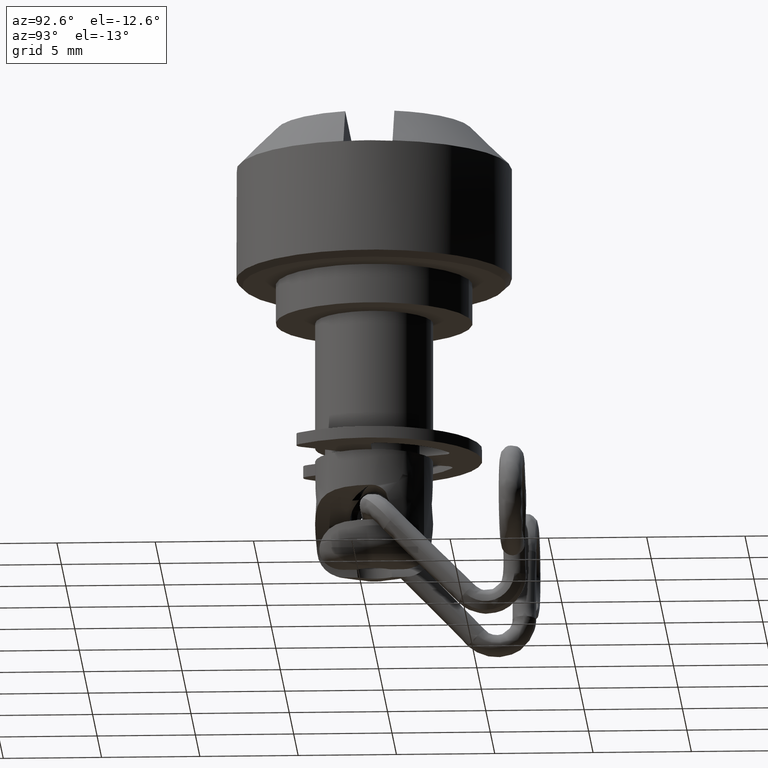
[diagram: clean part render]
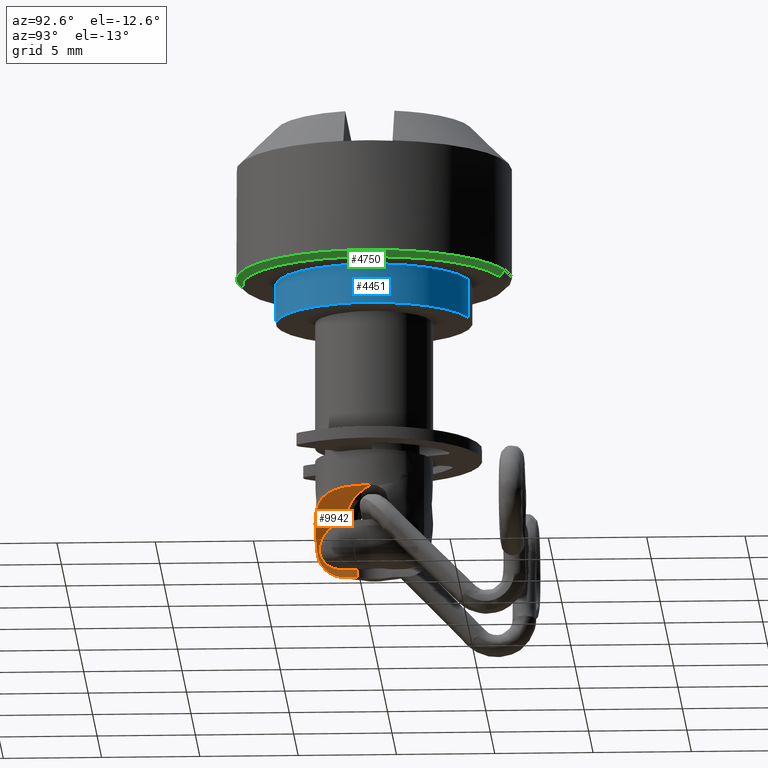
[diagram: same view with three faces highlighted in distinct colors, each labeled with its STEP entity id]
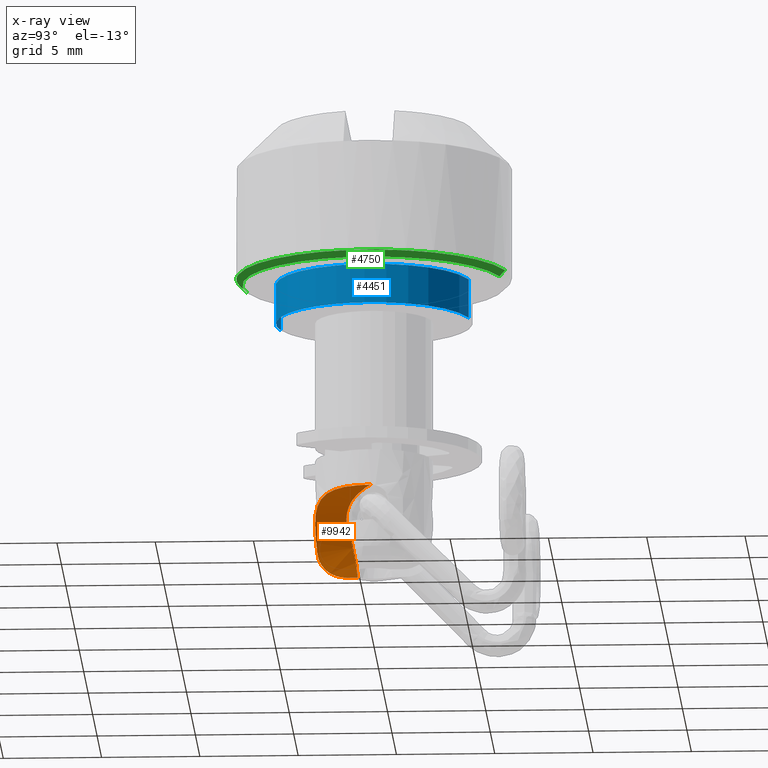
[diagram: x-ray of the same camera — body ghosted, the three highlighted faces saturated]
A machine part, auxiliary view with three faces highlighted in distinct colors.
The next image is the same camera in x-ray (body ghosted, the three faces saturated) — at least one of them is partly hidden behind the body in this view.
Their STEP definitions:

[orange] entity #9942 — the highlighted face is a freeform B-spline surface patch.
#4951=CARTESIAN_POINT('',(0.205963115357180,-1.232914520792794,-0.693671664067558));
#4952=VERTEX_POINT('',#4951);
#4965=CARTESIAN_POINT('',(-0.549029693676818,-1.122970416739746,-2.797568999999945));
#4966=VERTEX_POINT('',#4965);
#4967=CARTESIAN_POINT('',(-0.549029693676818,-1.122970416739746,-2.797568999999945));
#4968=CARTESIAN_POINT('',(-0.539944716294068,-1.127412151977025,-2.607059855098308));
#4969=CARTESIAN_POINT('',(-0.513922313118079,-1.140295388909913,-2.420711773217555));
#4970=CARTESIAN_POINT('',(-0.453519154628409,-1.165027990504133,-2.146028732553391));
#4971=CARTESIAN_POINT('',(-0.429820929953312,-1.174122430927605,-2.055270696278742));
#4972=CARTESIAN_POINT('',(-0.375838630284057,-1.192499487489124,-1.875130118935713));
#4973=CARTESIAN_POINT('',(-0.345463483476771,-1.201803046146432,-1.785511258873199));
#4974=CARTESIAN_POINT('',(-0.245730686628916,-1.227529441797733,-1.520183170621608));
#4975=CARTESIAN_POINT('',(-0.168237642866749,-1.241674139128102,-1.348768709188078));
#4976=CARTESIAN_POINT('',(-0.038083424173056,-1.250175162611496,-1.098302886985109));
#4977=CARTESIAN_POINT('',(0.007640550973446,-1.250896780519051,-1.015933972659380));
#4978=CARTESIAN_POINT('',(0.103523388370954,-1.246629227698777,-0.853268810086542));
#4979=CARTESIAN_POINT('',(0.153789024976393,-1.241630313570923,-0.772814035322686));
#4980=CARTESIAN_POINT('',(0.205963115357180,-1.232914520792794,-0.693671664067558));
#4981=B_SPLINE_CURVE_WITH_KNOTS('',3,(#4967,#4968,#4969,#4970,#4971,#4972,#4973,#4974,#4975,#4976,#4977,#4978,#4979,#4980),.UNSPECIFIED.,.F.,.U.,(4,2,2,2,2,2,4),(0.0,0.250000000000000,0.375000000000000,0.500000000000000,0.750000000000000,0.875000000000000,1.0),.UNSPECIFIED.);
#4982=EDGE_CURVE('',#4966,#4952,#4981,.T.);
#5463=CARTESIAN_POINT('',(0.384460657985585,-2.975263013997480,-1.547569000000000));
#5464=VERTEX_POINT('',#5463);
#5478=CARTESIAN_POINT('',(2.820636082294540,1.021300311204178,1.152422871597004));
#5479=VERTEX_POINT('',#5478);
#5480=CARTESIAN_POINT('',(2.820636082294540,1.021300311204178,1.152422871597004));
#5481=CARTESIAN_POINT('',(2.867171454631814,0.892784943060084,1.152411664944415));
#5482=CARTESIAN_POINT('',(2.904436219625526,0.762568608670980,1.151969508223129));
#5483=CARTESIAN_POINT('',(2.961153208947292,0.498872104625671,1.149885077966201));
#5484=CARTESIAN_POINT('',(2.980603171999665,0.365391501825253,1.148244242173445));
#5485=CARTESIAN_POINT('',(2.996214362942951,0.162694921416098,1.144053717700126));
#5486=CARTESIAN_POINT('',(2.999150652365594,0.094589669909876,1.142358684197990));
#5487=CARTESIAN_POINT('',(3.000353939690970,-0.041927600758881,1.138175390140097));
#5488=CARTESIAN_POINT('',(2.998625057596716,-0.109801904801938,1.135704017576309));
#5489=CARTESIAN_POINT('',(2.986645579679319,-0.312278810980644,1.126829523305095));
#5490=CARTESIAN_POINT('',(2.969629143994986,-0.445741133677874,1.118987908328453));
#5491=CARTESIAN_POINT('',(2.930819476978147,-0.643571411924924,1.102697735866866));
#5492=CARTESIAN_POINT('',(2.915661815735251,-0.709119536712041,1.096507950623886));
#5493=CARTESIAN_POINT('',(2.880865841295722,-0.839393978462464,1.082261716255054));
#5494=CARTESIAN_POINT('',(2.861159339547317,-0.904316496867817,1.074177044819475));
#5495=CARTESIAN_POINT('',(2.795645031299678,-1.096439356484251,1.046702736569682));
#5496=CARTESIAN_POINT('',(2.744070783024732,-1.219415084117195,1.024355472666634));
#5497=CARTESIAN_POINT('',(2.626594462647109,-1.455324705332227,0.969273962733540));
#5498=CARTESIAN_POINT('',(2.560684280920353,-1.568256406505874,0.936547620641303));
#5499=CARTESIAN_POINT('',(2.451769497483069,-1.729953427898197,0.877578184618789));
#5500=CARTESIAN_POINT('',(2.413594477170959,-1.782803774531881,0.856155634644694));
#5501=CARTESIAN_POINT('',(2.335116353202360,-1.884433780245936,0.810269749066437));
#5502=CARTESIAN_POINT('',(2.294830998791217,-1.933234833183781,0.785825991639727));
#5503=CARTESIAN_POINT('',(2.171272975007716,-2.073872018378895,0.707767892632356));
#5504=CARTESIAN_POINT('',(2.085305435931722,-2.159953281587504,0.649433063813324));
#5505=CARTESIAN_POINT('',(1.952498773572708,-2.278404082625602,0.551505772831926));
#5506=CARTESIAN_POINT('',(1.907585073947496,-2.316106057605309,0.517124450961756));
#5507=CARTESIAN_POINT('',(1.816708718150029,-2.388057525272861,0.444698387988086));
#5508=CARTESIAN_POINT('',(1.771092634412459,-2.422026135501389,0.406922891004774));
#5509=CARTESIAN_POINT('',(1.634918849928858,-2.517793813023590,0.289598514236484));
#5510=CARTESIAN_POINT('',(1.544677136637975,-2.573761560035087,0.205770763553067));
#5511=CARTESIAN_POINT('',(1.411357610679551,-2.647756607959278,0.071513951252716));
#5512=CARTESIAN_POINT('',(1.367256799689441,-2.670757199333073,0.025340827665486));
#5513=CARTESIAN_POINT('',(1.279930012480406,-2.713692062485188,-0.069884870702321));
#5514=CARTESIAN_POINT('',(1.236623353192088,-2.733654621764687,-0.119044041373188));
#5515=CARTESIAN_POINT('',(1.025326248476818,-2.825360973935341,-0.369039157569406));
#5516=CARTESIAN_POINT('',(0.870967672779984,-2.874244929633177,-0.584367378180337));
#5517=CARTESIAN_POINT('',(0.700171278148239,-2.917363852755223,-0.872490936875718));
#5518=CARTESIAN_POINT('',(0.667125871424556,-2.925066964007890,-0.931072772410460));
#5519=CARTESIAN_POINT('',(0.603388576668188,-2.938876517042195,-1.050182005424933));
#5520=CARTESIAN_POINT('',(0.572647152590511,-2.944991185645538,-1.110818654817948));
#5521=CARTESIAN_POINT('',(0.484686094694533,-2.961189120051016,-1.294599004678412));
#5522=CARTESIAN_POINT('',(0.431623281511967,-2.969169284470344,-1.419737738973266));
#5523=CARTESIAN_POINT('',(0.384460657985585,-2.975263013997480,-1.547569000000000));
#5524=B_SPLINE_CURVE_WITH_KNOTS('',3,(#5480,#5481,#5482,#5483,#5484,#5485,#5486,#5487,#5488,#5489,#5490,#5491,#5492,#5493,#5494,#5495,#5496,#5497,#5498,#5499,#5500,#5501,#5502,#5503,#5504,#5505,#5506,#5507,#5508,#5509,#5510,#5511,#5512,#5513,#5514,#5515,#5516,#5517,#5518,#5519,#5520,#5521,#5522,#5523),.UNSPECIFIED.,.F.,.U.,(4,2,2,2,2,2,2,2,2,2,2,2,2,2,2,2,2,2,2,2,2,4),(0.0,0.062500000000000,0.125000000000000,0.156250000000000,0.187500000000000,0.249999999999999,0.281249999999999,0.312499999999999,0.374999999999999,0.437499999999999,0.468749999999999,0.499999999999999,0.562499999999999,0.593749999999999,0.624999999999999,0.687499999999999,0.718749999999999,0.749999999999999,0.875000000000000,0.906250000000000,0.937500000000000,1.0),.UNSPECIFIED.);
#5525=EDGE_CURVE('',#5479,#5464,#5524,.T.);
#5828=CARTESIAN_POINT('',(0.205963115357180,-1.232914520792794,-0.693671664067558));
#5829=CARTESIAN_POINT('',(0.240257843658670,-1.245525729305493,-0.652129766293883));
#5830=CARTESIAN_POINT('',(0.309473795123974,-1.270978220858080,-0.568287089098994));
#5831=CARTESIAN_POINT('',(0.417605035121080,-1.284341641993242,-0.437671150039825));
#5832=CARTESIAN_POINT('',(0.530221625094299,-1.279532529407018,-0.304079947590560));
#5833=CARTESIAN_POINT('',(0.648262176235693,-1.254505408762430,-0.168101356018993));
#5834=CARTESIAN_POINT('',(0.772318663189203,-1.209626385641915,-0.030950985979541));
#5835=CARTESIAN_POINT('',(0.903001063769071,-1.144471330612155,0.106202832040895));
#5836=CARTESIAN_POINT('',(1.100481058849833,-1.022664792120136,0.300573881514726));
#5837=CARTESIAN_POINT('',(1.369903702545043,-0.803781906153216,0.535687031169386));
#5838=CARTESIAN_POINT('',(1.662626520485835,-0.493306108418290,0.744736145723308));
#5839=CARTESIAN_POINT('',(1.957759511550587,-0.121514362140409,0.917247279663458));
#5840=CARTESIAN_POINT('',(2.191257112335223,0.175955132924863,1.017008075086221));
#5841=CARTESIAN_POINT('',(2.388572376224178,0.425135789772737,1.077181772343820));
#5842=CARTESIAN_POINT('',(2.500341841118261,0.563242152980361,1.104773628544030));
#5843=CARTESIAN_POINT('',(2.598922473291687,0.685160403330863,1.124173982036536));
#5844=CARTESIAN_POINT('',(2.680224517866991,0.790181821811500,1.136917906089791));
#5845=CARTESIAN_POINT('',(2.743859805464496,0.875241964757955,1.144761716169484));
#5846=CARTESIAN_POINT('',(2.786193087535433,0.941124274144916,1.149142379023022));
#5847=CARTESIAN_POINT('',(2.815726133838135,0.986141797536301,1.151589093855657));
#5848=CARTESIAN_POINT('',(2.819390961713099,1.012384415371583,1.152211432752927));
#5849=CARTESIAN_POINT('',(2.820636082294540,1.021300311204178,1.152422871597004));
#5850=B_SPLINE_CURVE_WITH_KNOTS('',3,(#5828,#5829,#5830,#5831,#5832,#5833,#5834,#5835,#5836,#5837,#5838,#5839,#5840,#5841,#5842,#5843,#5844,#5845,#5846,#5847,#5848,#5849),.UNSPECIFIED.,.F.,.U.,(4,1,1,1,1,1,1,1,1,1,1,1,1,1,1,1,1,1,1,4),(0.000001393896253,0.039132818300070,0.078979055168553,0.120025420089439,0.162717585383855,0.207452049945907,0.254573775938284,0.304378134259630,0.421554539942391,0.549536769660944,0.639152081857267,0.778878114641514,0.825873964756257,0.868197930129148,0.906186987899415,0.937699474003213,0.962752355465390,0.981380532602847,0.993674059775080,1.0),.UNSPECIFIED.);
#5851=EDGE_CURVE('',#4952,#5479,#5850,.T.);
#9888=CARTESIAN_POINT('',(3.904202428307071,-1.851109253478826,1.154043304904847));
#9889=CARTESIAN_POINT('',(2.828025670628521,1.105659797657334,1.154043304904847));
#9890=CARTESIAN_POINT('',(0.115565390988988,-3.230061431456722,0.989158006792169));
#9891=CARTESIAN_POINT('',(-0.960611366689562,-0.273292380320562,0.989158006792169));
#9892=CARTESIAN_POINT('',(0.204362443107422,-3.197741922564572,-3.044889266617264));
#9893=CARTESIAN_POINT('',(-0.871814314571128,-0.240972871428412,-3.044889266617264));
#9901=(BOUNDED_SURFACE()B_SPLINE_SURFACE(1,2,((#9888,#9890,#9892),(#9889,#9891,#9893)),.UNSPECIFIED.,.F.,.F.,.U.)B_SPLINE_SURFACE_WITH_KNOTS((2,2),(3,3),(0.0,3.146528187625870),(0.0,6.719567059010545),.UNSPECIFIED.)GEOMETRIC_REPRESENTATION_ITEM()RATIONAL_B_SPLINE_SURFACE(((1.0,0.713250449154182,1.0),(1.0,0.713250449154182,1.0)))REPRESENTATION_ITEM('')SURFACE());
#9902=ORIENTED_EDGE('',*,*,#4982,.T.);
#9903=ORIENTED_EDGE('',*,*,#5851,.T.);
#9904=ORIENTED_EDGE('',*,*,#5525,.T.);
#9905=CARTESIAN_POINT('',(-0.332405349317000,-1.718140450428505,-2.797569000000000));
#9906=VERTEX_POINT('',#9905);
#9907=CARTESIAN_POINT('',(0.384460657985585,-2.975263013997480,-1.547569000000000));
#9908=CARTESIAN_POINT('',(0.353725753220118,-2.979234549170721,-1.630869672179825));
#9909=CARTESIAN_POINT('',(0.323404935149963,-2.974356987596519,-1.713152922088792));
#9910=CARTESIAN_POINT('',(0.278099530680259,-2.954196656421312,-1.834942802435956));
#9911=CARTESIAN_POINT('',(0.263023958552787,-2.945321051997315,-1.875263822567781));
#9912=CARTESIAN_POINT('',(0.232807172307743,-2.923153194939138,-1.955296703780111));
#9913=CARTESIAN_POINT('',(0.217641540884975,-2.909808081019763,-1.995064698932035));
#9914=CARTESIAN_POINT('',(0.172842896799725,-2.864020539901286,-2.110704623519117));
#9915=CARTESIAN_POINT('',(0.143571837376660,-2.825667465240883,-2.183855838643853));
#9916=CARTESIAN_POINT('',(0.099511222261994,-2.756662011372606,-2.287386242709175));
#9917=CARTESIAN_POINT('',(0.084722905090603,-2.731596910260179,-2.321017095539517));
#9918=CARTESIAN_POINT('',(0.055269015164988,-2.678204823394388,-2.385249918964169));
#9919=CARTESIAN_POINT('',(0.040662323962867,-2.650007471363921,-2.415736580907402));
#9920=CARTESIAN_POINT('',(-0.003093535514354,-2.561133589457696,-2.502399086767228));
#9921=CARTESIAN_POINT('',(-0.032181011021779,-2.496207441965324,-2.553812445748871));
#9922=CARTESIAN_POINT('',(-0.076767001321745,-2.390536364456005,-2.621075239942960));
#9923=CARTESIAN_POINT('',(-0.091684378628970,-2.354162341454572,-2.641671519141432));
#9924=CARTESIAN_POINT('',(-0.121408047386266,-2.280147457790476,-2.678822375509757));
#9925=CARTESIAN_POINT('',(-0.151134822083010,-2.204594544266973,-2.712106210244977));
#9926=CARTESIAN_POINT('',(-0.181115306444651,-2.126147298083776,-2.737869484548138));
#9927=CARTESIAN_POINT('',(-0.211318056590485,-2.046306397336791,-2.759913212420300));
#9928=CARTESIAN_POINT('',(-0.226597851232822,-2.005506966726295,-2.769099118149168));
#9929=CARTESIAN_POINT('',(-0.272184653172494,-1.882922264189031,-2.790780293142500));
#9930=CARTESIAN_POINT('',(-0.302347399385148,-1.800723925370904,-2.797569001314795));
#9931=CARTESIAN_POINT('',(-0.332405349317000,-1.718140450428505,-2.797569000000000));
#9932=B_SPLINE_CURVE_WITH_KNOTS('',3,(#9907,#9908,#9909,#9910,#9911,#9912,#9913,#9914,#9915,#9916,#9917,#9918,#9919,#9920,#9921,#9922,#9923,#9924,#9925,#9926,#9927,#9928,#9929,#9930,#9931),.UNSPECIFIED.,.F.,.U.,(4,2,2,2,2,2,2,2,2,1,2,2,4),(0.0,0.125000000000000,0.187500000000000,0.250000000000000,0.374999999999999,0.437500000000000,0.500000000000000,0.625000000000000,0.687500000000000,0.750000000000000,0.812500000000000,0.875000000000000,1.0),.UNSPECIFIED.);
#9933=EDGE_CURVE('',#5464,#9906,#9932,.T.);
#9934=ORIENTED_EDGE('',*,*,#9933,.T.);
#9935=CARTESIAN_POINT('',(-0.332405349317000,-1.718140450428505,-2.797569000000000));
#9936=CARTESIAN_POINT('',(-0.549029693676818,-1.122970416739746,-2.797568999999945));
#9937=QUASI_UNIFORM_CURVE('',1,(#9935,#9936),.UNSPECIFIED.,.F.,.U.);
#9938=EDGE_CURVE('',#9906,#4966,#9937,.T.);
#9939=ORIENTED_EDGE('',*,*,#9938,.T.);
#9940=EDGE_LOOP('',(#9902,#9903,#9904,#9934,#9939));
#9941=FACE_OUTER_BOUND('',#9940,.T.);
#9942=ADVANCED_FACE('',(#9941),#9901,.F.);

[blue] entity #4451 — the highlighted face is a freeform B-spline surface patch.
#4345=CARTESIAN_POINT('',(-0.663847294770363,4.956290107966582,12.252431000000028));
#4346=CARTESIAN_POINT('',(-0.626905372176714,4.960681215447754,12.252431000000028));
#4347=CARTESIAN_POINT('',(-0.448073643189888,4.981938077243028,12.252431000000019));
#4348=CARTESIAN_POINT('',(-0.305242697674285,4.990673992109334,12.252431000000019));
#4349=CARTESIAN_POINT('',(4.685431294435048,5.295916689783620,12.252431000000021));
#4350=CARTESIAN_POINT('',(4.990673992109334,0.305242697674285,12.252431000000019));
#4351=CARTESIAN_POINT('',(5.295916689783620,-4.685431294435048,12.252431000000021));
#4352=CARTESIAN_POINT('',(0.269350681095140,-4.992869241885801,12.252431000000028));
#4353=CARTESIAN_POINT('',(0.233671870313979,-4.995051451437027,12.252431000000024));
#4354=CARTESIAN_POINT('',(-0.663847294770363,4.956290107966582,10.151181000000019));
#4355=CARTESIAN_POINT('',(-0.626905372176714,4.960681215447754,10.151181000000021));
#4356=CARTESIAN_POINT('',(-0.448073643189888,4.981938077243028,10.151181000000019));
#4357=CARTESIAN_POINT('',(-0.305242697674285,4.990673992109334,10.151181000000021));
#4358=CARTESIAN_POINT('',(4.685431294435048,5.295916689783620,10.151181000000019));
#4359=CARTESIAN_POINT('',(4.990673992109334,0.305242697674285,10.151181000000021));
#4360=CARTESIAN_POINT('',(5.295916689783620,-4.685431294435048,10.151181000000019));
#4361=CARTESIAN_POINT('',(0.269350681095140,-4.992869241885801,10.151181000000026));
#4362=CARTESIAN_POINT('',(0.233671870313979,-4.995051451437027,10.151181000000021));
#4370=(BOUNDED_SURFACE()B_SPLINE_SURFACE(2,1,((#4345,#4354),(#4346,#4355),(#4347,#4356),(#4348,#4357),(#4349,#4358),(#4350,#4359),(#4351,#4360),(#4352,#4361),(#4353,#4362)),.UNSPECIFIED.,.F.,.F.,.U.)B_SPLINE_SURFACE_WITH_KNOTS((3,1,2,2,1,3),(2,2),(0.0,0.084491509864777,0.415862359763254,8.700133607225153,16.984404854687050,17.068913986153241),(0.0,2.101250000000007),.UNSPECIFIED.)GEOMETRIC_REPRESENTATION_ITEM()RATIONAL_B_SPLINE_SURFACE(((0.972009304993944,0.972009304993944),(0.974757552894535,0.974757552894535),(0.988284271247462,0.988284271247462),(1.0,1.0),(0.707106781186548,0.707106781186548),(1.0,1.0),(0.707106781186548,0.707106781186548),(1.002987848996596,1.002987848996596),(1.005975697993193,1.005975697993193)))REPRESENTATION_ITEM('')SURFACE());
#4371=CARTESIAN_POINT('',(-0.590164095105630,4.965048473156868,10.202431000000111));
#4372=VERTEX_POINT('',#4371);
#4373=CARTESIAN_POINT('',(5.0,0.0,10.202431000000020));
#4374=VERTEX_POINT('',#4373);
#4375=CARTESIAN_POINT('',(-0.590164095105630,4.965048473156868,10.202431000000105));
#4376=CARTESIAN_POINT('',(-0.296117021756428,5.0,10.202431000000018));
#4377=CARTESIAN_POINT('',(0.0,5.0,10.202431000000020));
#4378=CARTESIAN_POINT('',(5.000000000000001,5.000000000000001,10.202431000000020));
#4379=CARTESIAN_POINT('',(5.0,0.0,10.202431000000020));
#4387=(BOUNDED_CURVE()B_SPLINE_CURVE(2,(#4375,#4376,#4377,#4378,#4379),.UNSPECIFIED.,.F.,.U.)B_SPLINE_CURVE_WITH_KNOTS((3,2,3),(0.229562714446910,0.250000000000000,0.500000000000000),.UNSPECIFIED.)CURVE()GEOMETRIC_REPRESENTATION_ITEM()RATIONAL_B_SPLINE_CURVE((0.956027226423570,0.976056230602183,1.0,0.707106781186548,1.0))REPRESENTATION_ITEM(''));
#4388=EDGE_CURVE('',#4372,#4374,#4387,.T.);
#4389=ORIENTED_EDGE('',*,*,#4388,.F.);
#4390=CARTESIAN_POINT('',(-0.590164182401751,4.965048462780651,12.202431000000020));
#4391=VERTEX_POINT('',#4390);
#4392=CARTESIAN_POINT('',(-0.590164182401751,4.965048462780651,12.202431000000020));
#4393=CARTESIAN_POINT('',(-0.590164095105630,4.965048473156868,10.202431000000111));
#4394=QUASI_UNIFORM_CURVE('',1,(#4392,#4393),.UNSPECIFIED.,.F.,.U.);
#4395=EDGE_CURVE('',#4391,#4372,#4394,.T.);
#4396=ORIENTED_EDGE('',*,*,#4395,.F.);
#4397=CARTESIAN_POINT('',(5.0,0.0,12.202431000000020));
#4398=VERTEX_POINT('',#4397);
#4399=CARTESIAN_POINT('',(-0.590164182401751,4.965048462780651,12.202431000000024));
#4400=CARTESIAN_POINT('',(-0.296117065865912,5.000000000000001,12.202431000000026));
#4401=CARTESIAN_POINT('',(0.0,5.0,12.202431000000020));
#4402=CARTESIAN_POINT('',(5.000000000000001,5.000000000000001,12.202431000000020));
#4403=CARTESIAN_POINT('',(5.0,0.0,12.202431000000020));
#4411=(BOUNDED_CURVE()B_SPLINE_CURVE(2,(#4399,#4400,#4401,#4402,#4403),.UNSPECIFIED.,.F.,.U.)B_SPLINE_CURVE_WITH_KNOTS((3,2,3),(0.229562711475472,0.250000000000000,0.500000000000000),.UNSPECIFIED.)CURVE()GEOMETRIC_REPRESENTATION_ITEM()RATIONAL_B_SPLINE_CURVE((0.956027220599416,0.976056227120927,1.0,0.707106781186548,1.0))REPRESENTATION_ITEM(''));
#4412=EDGE_CURVE('',#4391,#4398,#4411,.T.);
#4413=ORIENTED_EDGE('',*,*,#4412,.T.);
#4414=CARTESIAN_POINT('',(0.305234654130921,-4.990674484060509,12.202431000000020));
#4415=VERTEX_POINT('',#4414);
#4416=CARTESIAN_POINT('',(5.0,0.0,12.202431000000020));
#4417=CARTESIAN_POINT('',(5.0,-4.703537929449199,12.202431000000017));
#4418=CARTESIAN_POINT('',(0.305234654130921,-4.990674484060509,12.202431000000020));
#4426=(BOUNDED_CURVE()B_SPLINE_CURVE(2,(#4416,#4417,#4418),.UNSPECIFIED.,.F.,.U.)B_SPLINE_CURVE_WITH_KNOTS((3,3),(0.500000000000000,0.739333240338249),.UNSPECIFIED.)CURVE()GEOMETRIC_REPRESENTATION_ITEM()RATIONAL_B_SPLINE_CURVE((1.0,0.719603667473107,0.976072637687193))REPRESENTATION_ITEM(''));
#4427=EDGE_CURVE('',#4398,#4415,#4426,.T.);
#4428=ORIENTED_EDGE('',*,*,#4427,.T.);
#4429=CARTESIAN_POINT('',(0.305234553650001,-4.990674490205858,10.202431000000029));
#4430=VERTEX_POINT('',#4429);
#4431=CARTESIAN_POINT('',(0.305234654130921,-4.990674484060509,12.202431000000020));
#4432=CARTESIAN_POINT('',(0.305234553650001,-4.990674490205858,10.202431000000029));
#4433=QUASI_UNIFORM_CURVE('',1,(#4431,#4432),.UNSPECIFIED.,.F.,.U.);
#4434=EDGE_CURVE('',#4415,#4430,#4433,.T.);
#4435=ORIENTED_EDGE('',*,*,#4434,.T.);
#4436=CARTESIAN_POINT('',(5.0,0.0,10.202431000000020));
#4437=CARTESIAN_POINT('',(4.999999999999999,-4.703538024325932,10.202431000000018));
#4438=CARTESIAN_POINT('',(0.305234553650001,-4.990674490205858,10.202431000000026));
#4446=(BOUNDED_CURVE()B_SPLINE_CURVE(2,(#4436,#4437,#4438),.UNSPECIFIED.,.F.,.U.)B_SPLINE_CURVE_WITH_KNOTS((3,3),(0.500000000000000,0.739333243812262),.UNSPECIFIED.)CURVE()GEOMETRIC_REPRESENTATION_ITEM()RATIONAL_B_SPLINE_CURVE((1.0,0.719603663403047,0.976072645132683))REPRESENTATION_ITEM(''));
#4447=EDGE_CURVE('',#4374,#4430,#4446,.T.);
#4448=ORIENTED_EDGE('',*,*,#4447,.F.);
#4449=EDGE_LOOP('',(#4389,#4396,#4413,#4428,#4435,#4448));
#4450=FACE_OUTER_BOUND('',#4449,.T.);
#4451=ADVANCED_FACE('',(#4450),#4370,.T.);

[green] entity #4750 — the highlighted face is a freeform B-spline surface patch.
#4559=CARTESIAN_POINT('',(-0.549213670095037,6.978421336131901,12.502433999999919));
#4560=VERTEX_POINT('',#4559);
#4574=CARTESIAN_POINT('',(-0.525675706004759,6.679343145260239,12.202431000000731));
#4575=VERTEX_POINT('',#4574);
#4576=CARTESIAN_POINT('',(-0.525675706004759,6.679343145260239,12.202431000000731));
#4577=CARTESIAN_POINT('',(-0.549213670095037,6.978421336131901,12.502433999999919));
#4578=QUASI_UNIFORM_CURVE('',1,(#4576,#4577),.UNSPECIFIED.,.F.,.U.);
#4579=EDGE_CURVE('',#4575,#4560,#4578,.T.);
#4596=CARTESIAN_POINT('',(0.525675706004759,-6.679343145260239,12.202431000000731));
#4597=VERTEX_POINT('',#4596);
#4613=CARTESIAN_POINT('',(0.549213670096856,-6.978421336131994,12.502434000000150));
#4614=VERTEX_POINT('',#4613);
#4615=CARTESIAN_POINT('',(0.525675706004759,-6.679343145260239,12.202431000000731));
#4616=CARTESIAN_POINT('',(0.549213670096856,-6.978421336131994,12.502434000000150));
#4617=QUASI_UNIFORM_CURVE('',1,(#4615,#4616),.UNSPECIFIED.,.F.,.U.);
#4618=EDGE_CURVE('',#4597,#4614,#4617,.T.);
#4653=CARTESIAN_POINT('',(0.525087256896888,-6.671866190488163,12.194930925000021));
#4654=CARTESIAN_POINT('',(7.196953447385050,-6.146778933591275,12.194930925000019));
#4655=CARTESIAN_POINT('',(6.671866190488163,0.525087256896888,12.194930925000021));
#4656=CARTESIAN_POINT('',(6.146778933591275,7.196953447385050,12.194930925000019));
#4657=CARTESIAN_POINT('',(-0.525087256896888,6.671866190488163,12.194930925000021));
#4658=CARTESIAN_POINT('',(0.549816830424870,-6.986085214772990,12.510121576874900));
#4659=CARTESIAN_POINT('',(7.535902045197860,-6.436268384348120,12.510121576874901));
#4660=CARTESIAN_POINT('',(6.986085214772990,0.549816830424870,12.510121576874900));
#4661=CARTESIAN_POINT('',(6.436268384348120,7.535902045197860,12.510121576874901));
#4662=CARTESIAN_POINT('',(-0.549816830424870,6.986085214772990,12.510121576874900));
#4670=(BOUNDED_SURFACE()B_SPLINE_SURFACE(2,1,((#4653,#4658),(#4654,#4659),(#4655,#4660),(#4656,#4661),(#4657,#4662)),.UNSPECIFIED.,.F.,.F.,.U.)B_SPLINE_SURFACE_WITH_KNOTS((3,2,3),(2,2),(0.0,11.610716940860311,23.221433881720611),(0.0,0.445746894614756),.UNSPECIFIED.)GEOMETRIC_REPRESENTATION_ITEM()RATIONAL_B_SPLINE_SURFACE(((1.0,1.0),(0.707106781186548,0.707106781186548),(1.0,1.0),(0.707106781186548,0.707106781186548),(1.0,1.0)))REPRESENTATION_ITEM('')SURFACE());
#4671=CARTESIAN_POINT('',(7.0,0.0,12.502433999999900));
#4672=VERTEX_POINT('',#4671);
#4673=CARTESIAN_POINT('',(-0.549213670095037,6.978421336131901,12.502433999999914));
#4674=CARTESIAN_POINT('',(-0.275030749053807,7.000000000000001,12.502433999999907));
#4675=CARTESIAN_POINT('',(0.0,7.0,12.502433999999900));
#4676=CARTESIAN_POINT('',(6.999999999999999,6.999999999999999,12.502433999999903));
#4677=CARTESIAN_POINT('',(7.0,0.0,12.502433999999900));
#4685=(BOUNDED_CURVE()B_SPLINE_CURVE(2,(#4673,#4674,#4675,#4676,#4677),.UNSPECIFIED.,.F.,.U.)B_SPLINE_CURVE_WITH_KNOTS((3,2,3),(0.236331300632761,0.250000000000000,0.500000000000000),.UNSPECIFIED.)CURVE()GEOMETRIC_REPRESENTATION_ITEM()RATIONAL_B_SPLINE_CURVE((0.969723356171803,0.983986122581344,1.0,0.707106781186547,1.0))REPRESENTATION_ITEM(''));
#4686=EDGE_CURVE('',#4560,#4672,#4685,.T.);
#4687=ORIENTED_EDGE('',*,*,#4686,.T.);
#4688=CARTESIAN_POINT('',(2.187905817082596,-6.649290799444414,12.502433999999900));
#4689=VERTEX_POINT('',#4688);
#4690=CARTESIAN_POINT('',(7.0,0.0,12.502433999999900));
#4691=CARTESIAN_POINT('',(6.999999999999999,-5.065902556414235,12.502433999999903));
#4692=CARTESIAN_POINT('',(2.187905817082596,-6.649290799444414,12.502433999999900));
#4700=(BOUNDED_CURVE()B_SPLINE_CURVE(2,(#4690,#4691,#4692),.UNSPECIFIED.,.F.,.U.)B_SPLINE_CURVE_WITH_KNOTS((3,3),(0.500000000000000,0.696855909610349),.UNSPECIFIED.)CURVE()GEOMETRIC_REPRESENTATION_ITEM()RATIONAL_B_SPLINE_CURVE((1.0,0.769368955967099,0.901946583594048))REPRESENTATION_ITEM(''));
#4701=EDGE_CURVE('',#4672,#4689,#4700,.T.);
#4702=ORIENTED_EDGE('',*,*,#4701,.T.);
#4703=CARTESIAN_POINT('',(2.187905817082596,-6.649290799444414,12.502433999999907));
#4704=CARTESIAN_POINT('',(1.388348233325505,-6.912380013749658,12.502433999999905));
#4705=CARTESIAN_POINT('',(0.549213670096856,-6.978421336131994,12.502434000000152));
#4713=(BOUNDED_CURVE()B_SPLINE_CURVE(2,(#4703,#4704,#4705),.UNSPECIFIED.,.F.,.U.)B_SPLINE_CURVE_WITH_KNOTS((3,3),(0.696855909610350,0.736331300632674),.UNSPECIFIED.)CURVE()GEOMETRIC_REPRESENTATION_ITEM()RATIONAL_B_SPLINE_CURVE((0.901946583594049,0.928532291392941,0.969723356171621))REPRESENTATION_ITEM(''));
#4714=EDGE_CURVE('',#4689,#4614,#4713,.T.);
#4715=ORIENTED_EDGE('',*,*,#4714,.T.);
#4716=ORIENTED_EDGE('',*,*,#4618,.F.);
#4717=CARTESIAN_POINT('',(6.699997000000000,0.0,12.202431000000020));
#4718=VERTEX_POINT('',#4717);
#4719=CARTESIAN_POINT('',(6.699997000000000,0.0,12.202431000000020));
#4720=CARTESIAN_POINT('',(6.699997000000000,-6.193413520928424,12.202431000000020));
#4721=CARTESIAN_POINT('',(0.525675706004759,-6.679343145260239,12.202431000000727));
#4729=(BOUNDED_CURVE()B_SPLINE_CURVE(2,(#4719,#4720,#4721),.UNSPECIFIED.,.F.,.U.)B_SPLINE_CURVE_WITH_KNOTS((3,3),(0.500000000000000,0.736331300632489),.UNSPECIFIED.)CURVE()GEOMETRIC_REPRESENTATION_ITEM()RATIONAL_B_SPLINE_CURVE((1.0,0.723120658605523,0.969723356171235))REPRESENTATION_ITEM(''));
#4730=EDGE_CURVE('',#4718,#4597,#4729,.T.);
#4731=ORIENTED_EDGE('',*,*,#4730,.F.);
#4732=CARTESIAN_POINT('',(-0.525675706004759,6.679343145260239,12.202431000000725));
#4733=CARTESIAN_POINT('',(-0.263243599086519,6.699997000000000,12.202431000000018));
#4734=CARTESIAN_POINT('',(0.0,6.699997000000000,12.202431000000020));
#4735=CARTESIAN_POINT('',(6.699996999999999,6.699996999999999,12.202431000000020));
#4736=CARTESIAN_POINT('',(6.699997000000000,0.0,12.202431000000020));
#4744=(BOUNDED_CURVE()B_SPLINE_CURVE(2,(#4732,#4733,#4734,#4735,#4736),.UNSPECIFIED.,.F.,.U.)B_SPLINE_CURVE_WITH_KNOTS((3,2,3),(0.236331300632488,0.250000000000000,0.500000000000000),.UNSPECIFIED.)CURVE()GEOMETRIC_REPRESENTATION_ITEM()RATIONAL_B_SPLINE_CURVE((0.969723356171234,0.983986122581024,1.0,0.707106781186548,1.0))REPRESENTATION_ITEM(''));
#4745=EDGE_CURVE('',#4575,#4718,#4744,.T.);
#4746=ORIENTED_EDGE('',*,*,#4745,.F.);
#4747=ORIENTED_EDGE('',*,*,#4579,.T.);
#4748=EDGE_LOOP('',(#4687,#4702,#4715,#4716,#4731,#4746,#4747));
#4749=FACE_OUTER_BOUND('',#4748,.T.);
#4750=ADVANCED_FACE('',(#4749),#4670,.T.);